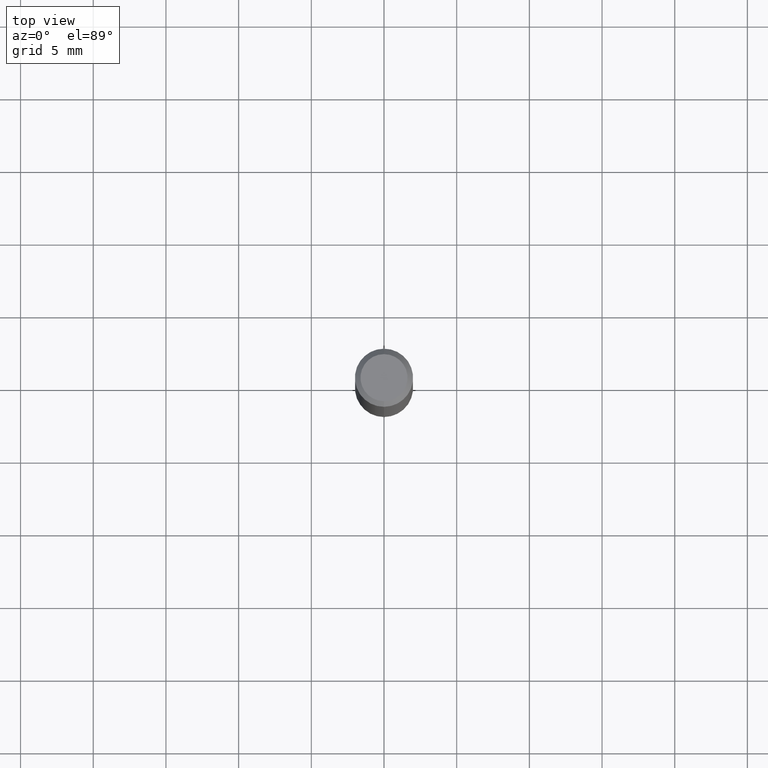
[diagram: clean part render]
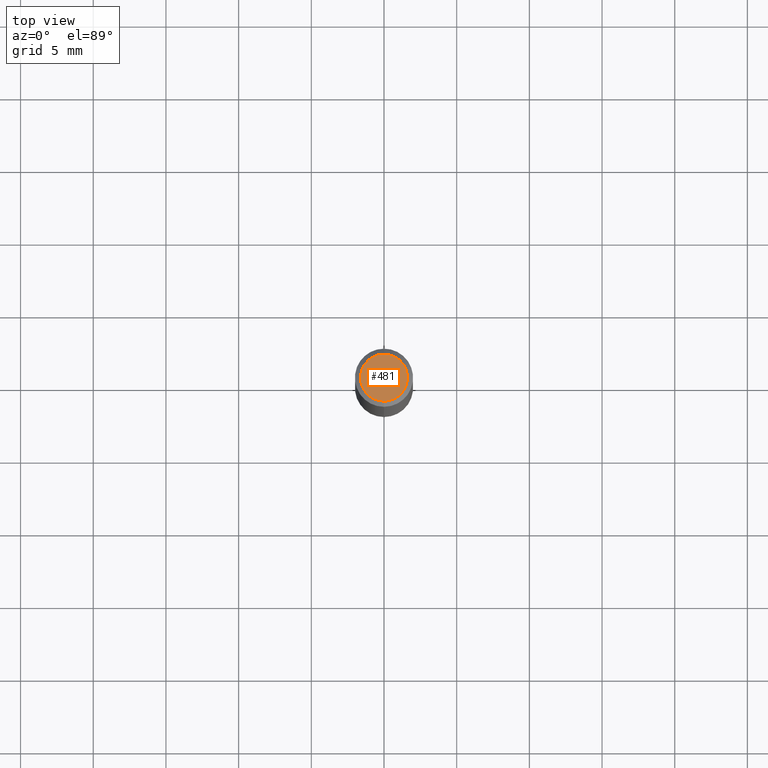
[diagram: same view with one face highlighted and labeled with its STEP entity id]
A machine part, top view. The second image highlights one B-rep face of the part: STEP entity #481.
In plain terms, the highlighted planar face has unit normal (0, -0, -1).
Its self-contained STEP definition (entity closure, byte-faithful):
#9 = CARTESIAN_POINT ( 'NONE',  ( -5.749249820364769586E-45, 8.208710176308107801E-31, 2.351024272549896843E-16 ) ) ;
#11 = DIRECTION ( 'NONE',  ( -2.445423421396322827E-29, 3.491546332443868579E-15, 1.000000000000000000 ) ) ;
#30 = FACE_OUTER_BOUND ( 'NONE', #392, .T. ) ;
#49 = DIRECTION ( 'NONE',  ( -6.982962677686264344E-15, -1.000000000000000000, 3.491546332443867790E-15 ) ) ;
#52 = EDGE_CURVE ( 'NONE', #320, #435, #437, .T. ) ;
#93 = DIRECTION ( 'NONE',  ( -6.982962677686264344E-15, -1.000000000000000000, 3.491546332443867790E-15 ) ) ;
#118 = EDGE_CURVE ( 'NONE', #435, #320, #325, .T. ) ;
#156 = CARTESIAN_POINT ( 'NONE',  ( 4.451638707024993845E-16, 0.06375000000000000111, -1.050348650658017743E-16 ) ) ;
#165 = PLANE ( 'NONE',  #444 ) ;
#174 = DIRECTION ( 'NONE',  ( -2.445423421396322827E-29, 3.491546332443868579E-15, 1.000000000000000000 ) ) ;
#196 = ORIENTED_EDGE ( 'NONE', *, *, #118, .T. ) ;
#200 = DIRECTION ( 'NONE',  ( 2.445423421396322267E-29, -3.491546332443868973E-15, -1.000000000000000000 ) ) ;
#301 = CARTESIAN_POINT ( 'NONE',  ( -5.749249820364769586E-45, 8.208710176308107801E-31, 2.351024272549896843E-16 ) ) ;
#320 = VERTEX_POINT ( 'NONE', #441 ) ;
#325 = CIRCLE ( 'NONE', #385, 0.06375000000000000111 ) ;
#329 = DIRECTION ( 'NONE',  ( 6.982962677686265922E-15, 1.000000000000000000, -3.491546332443868973E-15 ) ) ;
#385 = AXIS2_PLACEMENT_3D ( 'NONE', #9, #11, #49 ) ;
#392 = EDGE_LOOP ( 'NONE', ( #472, #196 ) ) ;
#435 = VERTEX_POINT ( 'NONE', #497 ) ;
#437 = CIRCLE ( 'NONE', #498, 0.06375000000000000111 ) ;
#441 = CARTESIAN_POINT ( 'NONE',  ( 4.975360907851465623E-16, 0.06375000000000000111, 1.251634856169306932E-17 ) ) ;
#444 = AXIS2_PLACEMENT_3D ( 'NONE', #156, #200, #329 ) ;
#472 = ORIENTED_EDGE ( 'NONE', *, *, #52, .T. ) ;
#481 = ADVANCED_FACE ( 'NONE', ( #30 ), #165, .F. ) ;
#497 = CARTESIAN_POINT ( 'NONE',  ( -4.888104823412213911E-16, -0.06375000000000000111, 4.576885059482862638E-16 ) ) ;
#498 = AXIS2_PLACEMENT_3D ( 'NONE', #301, #174, #93 ) ;